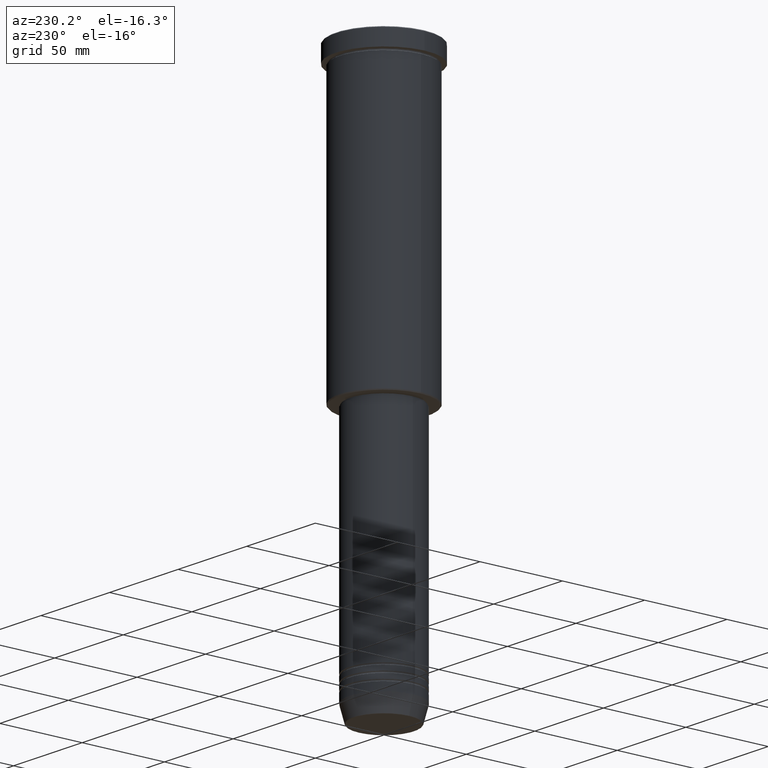
[diagram: clean part render]
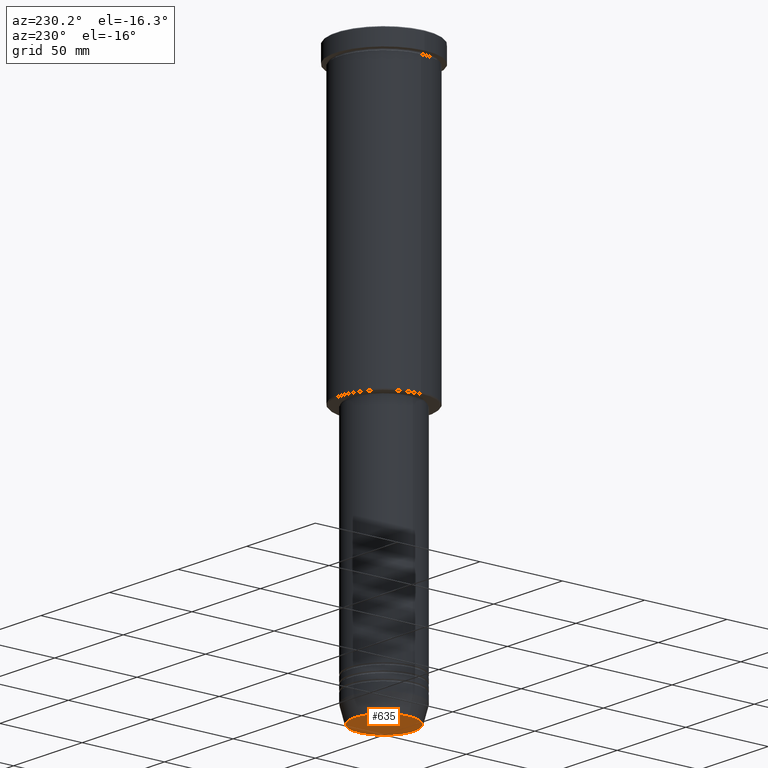
[diagram: same view with one face highlighted and labeled with its STEP entity id]
A machine part, auxiliary view. The second image highlights one B-rep face of the part: STEP entity #635.
In plain terms, the highlighted planar face has unit normal (0, -0, 1).
Its self-contained STEP definition (entity closure, byte-faithful):
#73 = DIRECTION ( 'NONE',  ( 1.000000000000000000, 0.000000000000000000, 0.000000000000000000 ) ) ;
#76 = CARTESIAN_POINT ( 'NONE',  ( 0.000000000000000000, 0.000000000000000000, -331.0000000000000000 ) ) ;
#98 = VERTEX_POINT ( 'NONE', #216 ) ;
#200 = AXIS2_PLACEMENT_3D ( 'NONE', #507, #864, #425 ) ;
#216 = CARTESIAN_POINT ( 'NONE',  ( 17.93684458169929030, 0.000000000000000000, -331.0000000000000000 ) ) ;
#283 = EDGE_CURVE ( 'NONE', #724, #98, #713, .T. ) ;
#350 = DIRECTION ( 'NONE',  ( 0.000000000000000000, -0.000000000000000000, 1.000000000000000000 ) ) ;
#379 = AXIS2_PLACEMENT_3D ( 'NONE', #896, #350, #73 ) ;
#382 = ORIENTED_EDGE ( 'NONE', *, *, #283, .T. ) ;
#425 = DIRECTION ( 'NONE',  ( 1.000000000000000000, 0.000000000000000000, 0.000000000000000000 ) ) ;
#458 = DIRECTION ( 'NONE',  ( 0.000000000000000000, 0.000000000000000000, -1.000000000000000000 ) ) ;
#466 = ORIENTED_EDGE ( 'NONE', *, *, #829, .T. ) ;
#507 = CARTESIAN_POINT ( 'NONE',  ( 0.000000000000000000, 0.000000000000000000, -331.0000000000000000 ) ) ;
#625 = CARTESIAN_POINT ( 'NONE',  ( -17.93684458169929030, 2.226202879662625134E-15, -331.0000000000000000 ) ) ;
#632 = EDGE_LOOP ( 'NONE', ( #466, #382 ) ) ;
#635 = ADVANCED_FACE ( 'NONE', ( #977 ), #1061, .F. ) ;
#713 = CIRCLE ( 'NONE', #200, 17.93684458169929030 ) ;
#724 = VERTEX_POINT ( 'NONE', #625 ) ;
#799 = DIRECTION ( 'NONE',  ( 1.000000000000000000, 0.000000000000000000, 0.000000000000000000 ) ) ;
#829 = EDGE_CURVE ( 'NONE', #98, #724, #863, .T. ) ;
#863 = CIRCLE ( 'NONE', #1097, 17.93684458169929030 ) ;
#864 = DIRECTION ( 'NONE',  ( 0.000000000000000000, 0.000000000000000000, -1.000000000000000000 ) ) ;
#896 = CARTESIAN_POINT ( 'NONE',  ( 0.000000000000000000, 0.000000000000000000, -331.0000000000000000 ) ) ;
#977 = FACE_OUTER_BOUND ( 'NONE', #632, .T. ) ;
#1061 = PLANE ( 'NONE',  #379 ) ;
#1097 = AXIS2_PLACEMENT_3D ( 'NONE', #76, #458, #799 ) ;